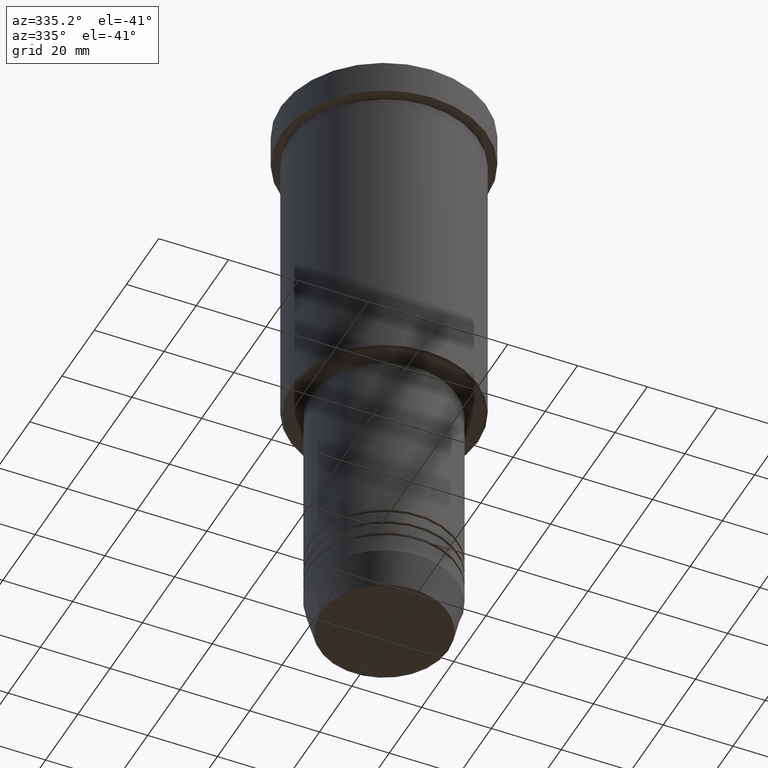
[diagram: clean part render]
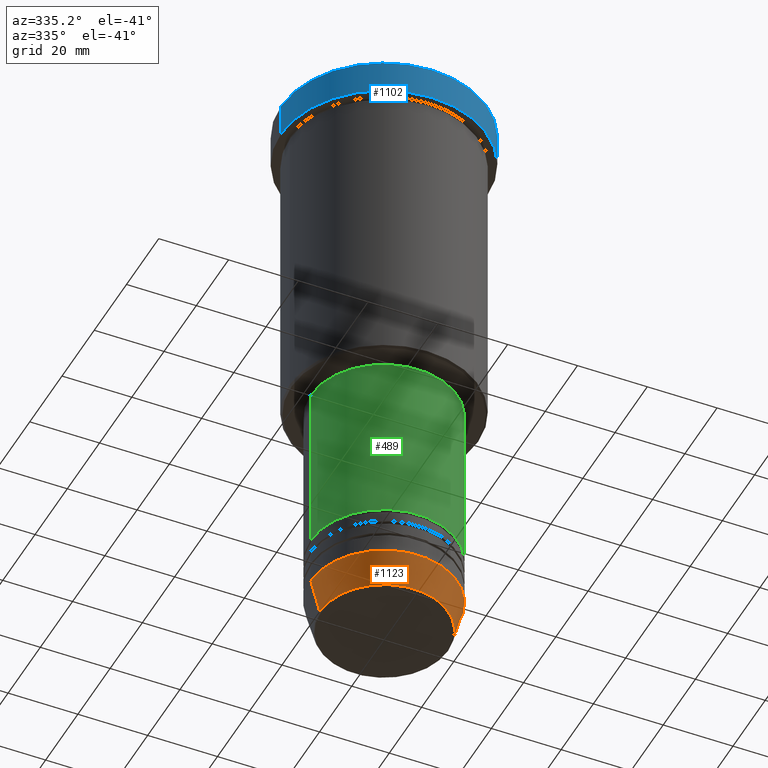
[diagram: same view with three faces highlighted in distinct colors, each labeled with its STEP entity id]
A machine part, auxiliary view with three faces highlighted in distinct colors.
Their STEP definitions:

[orange] entity #1123 — the highlighted conical surface has half-angle 15 deg.
#75 = LINE ( 'NONE', #420, #317 ) ;
#80 = CARTESIAN_POINT ( 'NONE',  ( 0.000000000000000000, 0.000000000000000000, -160.9999999999999716 ) ) ;
#96 = ORIENTED_EDGE ( 'NONE', *, *, #926, .F. ) ;
#103 = VERTEX_POINT ( 'NONE', #456 ) ;
#151 = FACE_OUTER_BOUND ( 'NONE', #490, .T. ) ;
#174 = ORIENTED_EDGE ( 'NONE', *, *, #852, .T. ) ;
#205 = CIRCLE ( 'NONE', #448, 21.00000000000000000 ) ;
#206 = VERTEX_POINT ( 'NONE', #916 ) ;
#227 = DIRECTION ( 'NONE',  ( -0.2588190451025211836, 3.169619151431770488E-17, 0.9659258262890680902 ) ) ;
#246 = EDGE_CURVE ( 'NONE', #206, #309, #614, .T. ) ;
#248 = DIRECTION ( 'NONE',  ( 1.000000000000000000, 0.000000000000000000, 0.000000000000000000 ) ) ;
#275 = CARTESIAN_POINT ( 'NONE',  ( 0.000000000000000000, 0.000000000000000000, -170.6294095225512706 ) ) ;
#309 = VERTEX_POINT ( 'NONE', #894 ) ;
#317 = VECTOR ( 'NONE', #1082, 1000.000000000000114 ) ;
#357 = ORIENTED_EDGE ( 'NONE', *, *, #246, .F. ) ;
#382 = VERTEX_POINT ( 'NONE', #756 ) ;
#420 = CARTESIAN_POINT ( 'NONE',  ( 21.00000000000000000, 0.000000000000000000, -160.9999999999999716 ) ) ;
#422 = DIRECTION ( 'NONE',  ( 1.000000000000000000, 0.000000000000000000, 0.000000000000000000 ) ) ;
#436 = EDGE_CURVE ( 'NONE', #103, #382, #75, .T. ) ;
#448 = AXIS2_PLACEMENT_3D ( 'NONE', #1081, #691, #248 ) ;
#456 = CARTESIAN_POINT ( 'NONE',  ( 18.41980749484383040, 0.000000000000000000, -170.6294095225512706 ) ) ;
#490 = EDGE_LOOP ( 'NONE', ( #357, #174, #783, #96 ) ) ;
#521 = CARTESIAN_POINT ( 'NONE',  ( -21.00000000000000000, 2.571758278209441661E-15, -160.9999999999999716 ) ) ;
#598 = AXIS2_PLACEMENT_3D ( 'NONE', #275, #628, #1029 ) ;
#614 = LINE ( 'NONE', #521, #843 ) ;
#628 = DIRECTION ( 'NONE',  ( -0.000000000000000000, -0.000000000000000000, 1.000000000000000000 ) ) ;
#691 = DIRECTION ( 'NONE',  ( -0.000000000000000000, -0.000000000000000000, 1.000000000000000000 ) ) ;
#714 = CONICAL_SURFACE ( 'NONE', #752, 21.00000000000000000, 0.2617993877991499074 ) ;
#719 = CIRCLE ( 'NONE', #598, 18.41980749484383040 ) ;
#752 = AXIS2_PLACEMENT_3D ( 'NONE', #80, #1165, #422 ) ;
#756 = CARTESIAN_POINT ( 'NONE',  ( 21.00000000000000000, 0.000000000000000000, -160.9999999999999716 ) ) ;
#783 = ORIENTED_EDGE ( 'NONE', *, *, #436, .T. ) ;
#843 = VECTOR ( 'NONE', #227, 1000.000000000000114 ) ;
#852 = EDGE_CURVE ( 'NONE', #206, #103, #719, .T. ) ;
#894 = CARTESIAN_POINT ( 'NONE',  ( -21.00000000000000000, 2.571758278209441661E-15, -160.9999999999999716 ) ) ;
#916 = CARTESIAN_POINT ( 'NONE',  ( -18.41980749484383040, 2.413767053578267064E-15, -170.6294095225512706 ) ) ;
#926 = EDGE_CURVE ( 'NONE', #309, #382, #205, .T. ) ;
#1029 = DIRECTION ( 'NONE',  ( 1.000000000000000000, 0.000000000000000000, 0.000000000000000000 ) ) ;
#1081 = CARTESIAN_POINT ( 'NONE',  ( 0.000000000000000000, 0.000000000000000000, -160.9999999999999716 ) ) ;
#1082 = DIRECTION ( 'NONE',  ( 0.2588190451025211836, 0.000000000000000000, 0.9659258262890680902 ) ) ;
#1123 = ADVANCED_FACE ( 'NONE', ( #151 ), #714, .T. ) ;
#1165 = DIRECTION ( 'NONE',  ( -0.000000000000000000, -0.000000000000000000, 1.000000000000000000 ) ) ;

[blue] entity #1102 — the highlighted cylindrical surface (partial cylindrical patch) has radius 29.5 mm, axis along (-0, -0, 1).
#3 = VECTOR ( 'NONE', #976, 1000.000000000000000 ) ;
#49 = ORIENTED_EDGE ( 'NONE', *, *, #449, .T. ) ;
#57 = VECTOR ( 'NONE', #504, 1000.000000000000000 ) ;
#60 = CYLINDRICAL_SURFACE ( 'NONE', #1153, 29.50000000000000000 ) ;
#139 = CARTESIAN_POINT ( 'NONE',  ( 29.50000000000000000, 0.000000000000000000, -9.999999999999992895 ) ) ;
#149 = DIRECTION ( 'NONE',  ( 0.000000000000000000, 0.000000000000000000, -1.000000000000000000 ) ) ;
#155 = ORIENTED_EDGE ( 'NONE', *, *, #1140, .F. ) ;
#233 = CARTESIAN_POINT ( 'NONE',  ( 0.000000000000000000, 0.000000000000000000, -9.999999999999992895 ) ) ;
#235 = ORIENTED_EDGE ( 'NONE', *, *, #747, .T. ) ;
#330 = LINE ( 'NONE', #1084, #3 ) ;
#336 = DIRECTION ( 'NONE',  ( -0.000000000000000000, -0.000000000000000000, 1.000000000000000000 ) ) ;
#415 = EDGE_CURVE ( 'NONE', #1024, #868, #574, .T. ) ;
#449 = EDGE_CURVE ( 'NONE', #868, #1158, #588, .T. ) ;
#464 = CIRCLE ( 'NONE', #901, 29.50000000000000000 ) ;
#504 = DIRECTION ( 'NONE',  ( -0.000000000000000000, -0.000000000000000000, 1.000000000000000000 ) ) ;
#574 = LINE ( 'NONE', #950, #57 ) ;
#588 = CIRCLE ( 'NONE', #807, 29.50000000000000000 ) ;
#623 = CARTESIAN_POINT ( 'NONE',  ( -29.50000000000000000, 3.612708057484691604E-15, -9.999999999999992895 ) ) ;
#640 = ORIENTED_EDGE ( 'NONE', *, *, #415, .T. ) ;
#680 = EDGE_LOOP ( 'NONE', ( #155, #235, #640, #49 ) ) ;
#690 = DIRECTION ( 'NONE',  ( -0.000000000000000000, -0.000000000000000000, 1.000000000000000000 ) ) ;
#747 = EDGE_CURVE ( 'NONE', #827, #1024, #464, .T. ) ;
#774 = DIRECTION ( 'NONE',  ( 1.000000000000000000, 0.000000000000000000, 0.000000000000000000 ) ) ;
#788 = CARTESIAN_POINT ( 'NONE',  ( 0.000000000000000000, 0.000000000000000000, -0.5000000000000281997 ) ) ;
#807 = AXIS2_PLACEMENT_3D ( 'NONE', #788, #149, #1070 ) ;
#827 = VERTEX_POINT ( 'NONE', #623 ) ;
#868 = VERTEX_POINT ( 'NONE', #1156 ) ;
#877 = CARTESIAN_POINT ( 'NONE',  ( -29.50000000000000000, 3.612708057484691604E-15, -0.5000000000000281997 ) ) ;
#901 = AXIS2_PLACEMENT_3D ( 'NONE', #233, #690, #972 ) ;
#950 = CARTESIAN_POINT ( 'NONE',  ( 29.50000000000000000, 0.000000000000000000, 0.000000000000000000 ) ) ;
#970 = CARTESIAN_POINT ( 'NONE',  ( 0.000000000000000000, 0.000000000000000000, 0.000000000000000000 ) ) ;
#972 = DIRECTION ( 'NONE',  ( 1.000000000000000000, 0.000000000000000000, 0.000000000000000000 ) ) ;
#976 = DIRECTION ( 'NONE',  ( -0.000000000000000000, -0.000000000000000000, 1.000000000000000000 ) ) ;
#1024 = VERTEX_POINT ( 'NONE', #139 ) ;
#1070 = DIRECTION ( 'NONE',  ( 1.000000000000000000, 0.000000000000000000, 0.000000000000000000 ) ) ;
#1084 = CARTESIAN_POINT ( 'NONE',  ( -29.50000000000000000, 3.612708057484691604E-15, 0.000000000000000000 ) ) ;
#1102 = ADVANCED_FACE ( 'NONE', ( #1162 ), #60, .T. ) ;
#1140 = EDGE_CURVE ( 'NONE', #827, #1158, #330, .T. ) ;
#1153 = AXIS2_PLACEMENT_3D ( 'NONE', #970, #336, #774 ) ;
#1156 = CARTESIAN_POINT ( 'NONE',  ( 29.50000000000000000, 0.000000000000000000, -0.5000000000000281997 ) ) ;
#1158 = VERTEX_POINT ( 'NONE', #877 ) ;
#1162 = FACE_OUTER_BOUND ( 'NONE', #680, .T. ) ;

[green] entity #489 — the highlighted cylindrical surface (partial cylindrical patch) has radius 21 mm, axis along (-0, -0, 1).
#35 = VERTEX_POINT ( 'NONE', #255 ) ;
#53 = EDGE_CURVE ( 'NONE', #537, #35, #862, .T. ) ;
#66 = LINE ( 'NONE', #536, #179 ) ;
#68 = CARTESIAN_POINT ( 'NONE',  ( -20.99999999999999645, 2.571758278209441267E-15, -96.99999999999997158 ) ) ;
#114 = EDGE_CURVE ( 'NONE', #35, #321, #392, .T. ) ;
#136 = CARTESIAN_POINT ( 'NONE',  ( 20.99999999999999645, 0.000000000000000000, -96.99999999999997158 ) ) ;
#167 = CYLINDRICAL_SURFACE ( 'NONE', #750, 20.99999999999999645 ) ;
#179 = VECTOR ( 'NONE', #356, 1000.000000000000000 ) ;
#255 = CARTESIAN_POINT ( 'NONE',  ( 21.00000000000000000, 0.000000000000000000, -146.9999999999998579 ) ) ;
#292 = CARTESIAN_POINT ( 'NONE',  ( 20.99999999999999645, 0.000000000000000000, 0.000000000000000000 ) ) ;
#321 = VERTEX_POINT ( 'NONE', #136 ) ;
#348 = DIRECTION ( 'NONE',  ( 1.000000000000000000, 0.000000000000000000, 0.000000000000000000 ) ) ;
#355 = AXIS2_PLACEMENT_3D ( 'NONE', #627, #1001, #1008 ) ;
#356 = DIRECTION ( 'NONE',  ( -0.000000000000000000, -0.000000000000000000, 1.000000000000000000 ) ) ;
#379 = ORIENTED_EDGE ( 'NONE', *, *, #964, .F. ) ;
#392 = LINE ( 'NONE', #292, #726 ) ;
#480 = DIRECTION ( 'NONE',  ( -0.000000000000000000, -0.000000000000000000, 1.000000000000000000 ) ) ;
#489 = ADVANCED_FACE ( 'NONE', ( #881 ), #167, .T. ) ;
#497 = EDGE_LOOP ( 'NONE', ( #943, #798, #723, #379 ) ) ;
#536 = CARTESIAN_POINT ( 'NONE',  ( -20.99999999999999645, 2.571758278209441267E-15, 0.000000000000000000 ) ) ;
#537 = VERTEX_POINT ( 'NONE', #583 ) ;
#566 = EDGE_CURVE ( 'NONE', #537, #1145, #66, .T. ) ;
#583 = CARTESIAN_POINT ( 'NONE',  ( -21.00000000000000000, 2.571758278209441661E-15, -146.9999999999998579 ) ) ;
#627 = CARTESIAN_POINT ( 'NONE',  ( 0.000000000000000000, 0.000000000000000000, -146.9999999999998579 ) ) ;
#652 = AXIS2_PLACEMENT_3D ( 'NONE', #674, #480, #655 ) ;
#655 = DIRECTION ( 'NONE',  ( 1.000000000000000000, 0.000000000000000000, 0.000000000000000000 ) ) ;
#674 = CARTESIAN_POINT ( 'NONE',  ( 0.000000000000000000, 0.000000000000000000, -96.99999999999997158 ) ) ;
#675 = CIRCLE ( 'NONE', #652, 20.99999999999999645 ) ;
#699 = DIRECTION ( 'NONE',  ( -0.000000000000000000, -0.000000000000000000, 1.000000000000000000 ) ) ;
#723 = ORIENTED_EDGE ( 'NONE', *, *, #114, .T. ) ;
#726 = VECTOR ( 'NONE', #1036, 1000.000000000000000 ) ;
#750 = AXIS2_PLACEMENT_3D ( 'NONE', #887, #699, #348 ) ;
#798 = ORIENTED_EDGE ( 'NONE', *, *, #53, .T. ) ;
#862 = CIRCLE ( 'NONE', #355, 21.00000000000000000 ) ;
#881 = FACE_OUTER_BOUND ( 'NONE', #497, .T. ) ;
#887 = CARTESIAN_POINT ( 'NONE',  ( 0.000000000000000000, 0.000000000000000000, 0.000000000000000000 ) ) ;
#943 = ORIENTED_EDGE ( 'NONE', *, *, #566, .F. ) ;
#964 = EDGE_CURVE ( 'NONE', #1145, #321, #675, .T. ) ;
#1001 = DIRECTION ( 'NONE',  ( -0.000000000000000000, -0.000000000000000000, 1.000000000000000000 ) ) ;
#1008 = DIRECTION ( 'NONE',  ( 1.000000000000000000, 0.000000000000000000, 0.000000000000000000 ) ) ;
#1036 = DIRECTION ( 'NONE',  ( -0.000000000000000000, -0.000000000000000000, 1.000000000000000000 ) ) ;
#1145 = VERTEX_POINT ( 'NONE', #68 ) ;